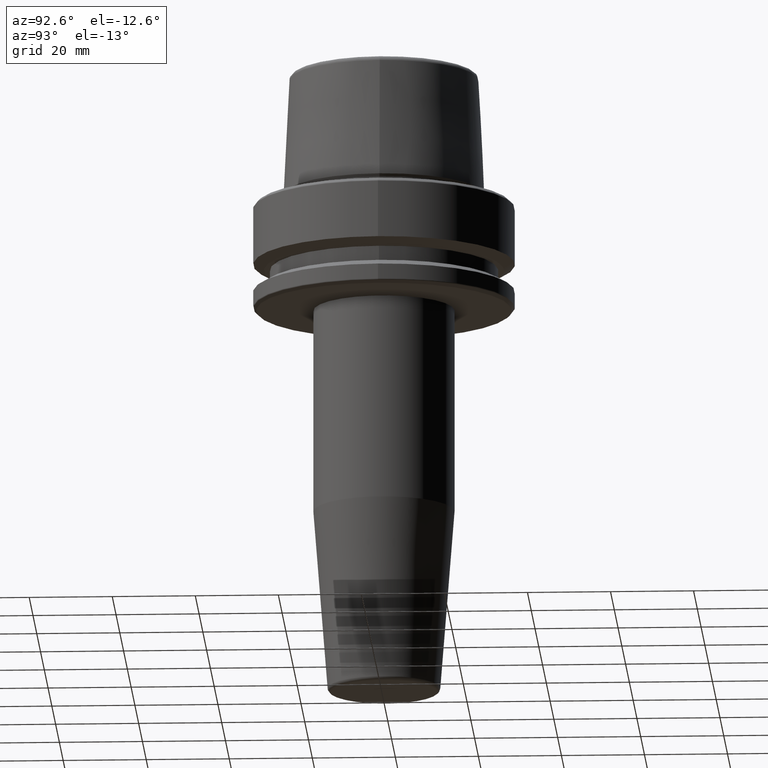
[diagram: clean part render]
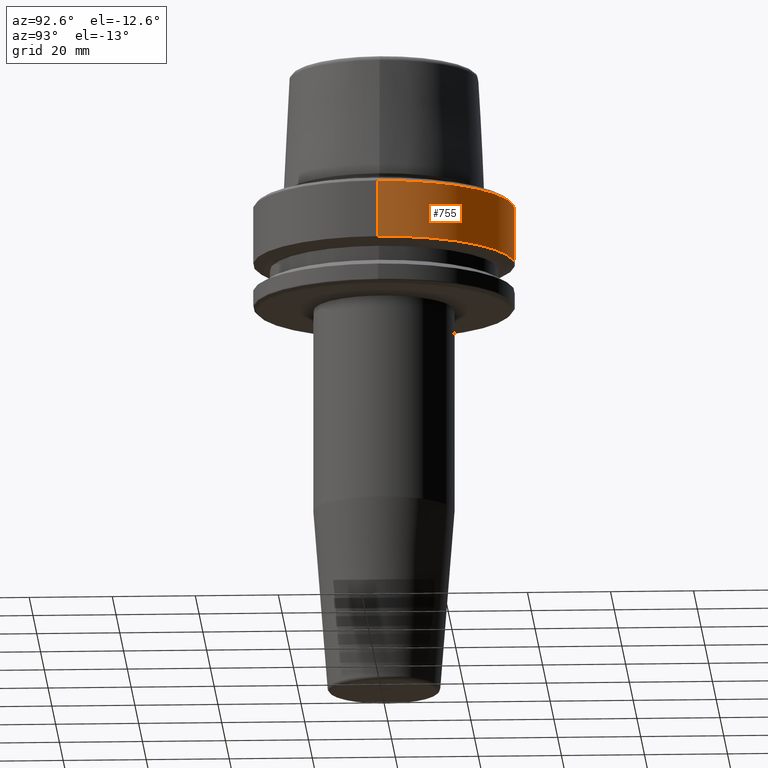
[diagram: same view with one face highlighted and labeled with its STEP entity id]
A machine part, auxiliary view. The second image highlights one B-rep face of the part: STEP entity #755.
In plain terms, the highlighted cylindrical surface (partial cylindrical patch) has radius 31.5 mm, axis along (-0, -0, 1).
Its self-contained STEP definition (entity closure, byte-faithful):
#3 = CARTESIAN_POINT ( 'NONE',  ( 31.50000000000000000, 0.0000000000000000000, -14.62250092524070100 ) ) ;
#51 = EDGE_CURVE ( 'NONE', #1231, #388, #1176, .T. ) ;
#64 = FACE_OUTER_BOUND ( 'NONE', #452, .T. ) ;
#145 = VECTOR ( 'NONE', #743, 1000.000000000000000 ) ;
#153 = CIRCLE ( 'NONE', #1031, 31.50000000000000700 ) ;
#217 = CARTESIAN_POINT ( 'NONE',  ( 0.0000000000000000000, 0.0000000000000000000, 78.96908074195309300 ) ) ;
#222 = ORIENTED_EDGE ( 'NONE', *, *, #1241, .F. ) ;
#226 = ORIENTED_EDGE ( 'NONE', *, *, #600, .T. ) ;
#287 = CARTESIAN_POINT ( 'NONE',  ( -31.50000000000000700, 3.857637417314163500E-015, -0.9656854249492363700 ) ) ;
#313 = CARTESIAN_POINT ( 'NONE',  ( 0.0000000000000000000, 0.0000000000000000000, -0.9656854249492363700 ) ) ;
#316 = DIRECTION ( 'NONE',  ( -0.0000000000000000000, -0.0000000000000000000, 1.000000000000000000 ) ) ;
#322 = CIRCLE ( 'NONE', #1235, 31.50000000000000000 ) ;
#378 = CARTESIAN_POINT ( 'NONE',  ( 31.50000000000000700, 0.0000000000000000000, -0.9656854249492363700 ) ) ;
#388 = VERTEX_POINT ( 'NONE', #378 ) ;
#421 = DIRECTION ( 'NONE',  ( 1.000000000000000000, 0.0000000000000000000, 0.0000000000000000000 ) ) ;
#452 = EDGE_LOOP ( 'NONE', ( #226, #644, #222, #1150 ) ) ;
#512 = DIRECTION ( 'NONE',  ( -0.0000000000000000000, -0.0000000000000000000, 1.000000000000000000 ) ) ;
#515 = DIRECTION ( 'NONE',  ( -0.0000000000000000000, -0.0000000000000000000, 1.000000000000000000 ) ) ;
#564 = VERTEX_POINT ( 'NONE', #1076 ) ;
#600 = EDGE_CURVE ( 'NONE', #1231, #564, #322, .T. ) ;
#644 = ORIENTED_EDGE ( 'NONE', *, *, #923, .T. ) ;
#653 = CARTESIAN_POINT ( 'NONE',  ( -31.50000000000000000, 3.857637417314162700E-015, 78.96908074195309300 ) ) ;
#726 = CYLINDRICAL_SURFACE ( 'NONE', #948, 31.50000000000000000 ) ;
#743 = DIRECTION ( 'NONE',  ( -0.0000000000000000000, -0.0000000000000000000, 1.000000000000000000 ) ) ;
#755 = ADVANCED_FACE ( 'NONE', ( #64 ), #726, .T. ) ;
#849 = LINE ( 'NONE', #653, #145 ) ;
#892 = CARTESIAN_POINT ( 'NONE',  ( 31.50000000000000000, 0.0000000000000000000, 78.96908074195309300 ) ) ;
#920 = VECTOR ( 'NONE', #512, 1000.000000000000000 ) ;
#923 = EDGE_CURVE ( 'NONE', #564, #970, #849, .T. ) ;
#948 = AXIS2_PLACEMENT_3D ( 'NONE', #217, #316, #997 ) ;
#970 = VERTEX_POINT ( 'NONE', #287 ) ;
#996 = DIRECTION ( 'NONE',  ( -0.0000000000000000000, -0.0000000000000000000, 1.000000000000000000 ) ) ;
#997 = DIRECTION ( 'NONE',  ( 1.000000000000000000, 0.0000000000000000000, 0.0000000000000000000 ) ) ;
#1031 = AXIS2_PLACEMENT_3D ( 'NONE', #313, #996, #421 ) ;
#1076 = CARTESIAN_POINT ( 'NONE',  ( -31.50000000000000000, 3.857637417314162700E-015, -14.62250092524070100 ) ) ;
#1095 = CARTESIAN_POINT ( 'NONE',  ( 0.0000000000000000000, 0.0000000000000000000, -14.62250092524070100 ) ) ;
#1150 = ORIENTED_EDGE ( 'NONE', *, *, #51, .F. ) ;
#1176 = LINE ( 'NONE', #892, #920 ) ;
#1196 = DIRECTION ( 'NONE',  ( 1.000000000000000000, 0.0000000000000000000, 0.0000000000000000000 ) ) ;
#1231 = VERTEX_POINT ( 'NONE', #3 ) ;
#1235 = AXIS2_PLACEMENT_3D ( 'NONE', #1095, #515, #1196 ) ;
#1241 = EDGE_CURVE ( 'NONE', #388, #970, #153, .T. ) ;